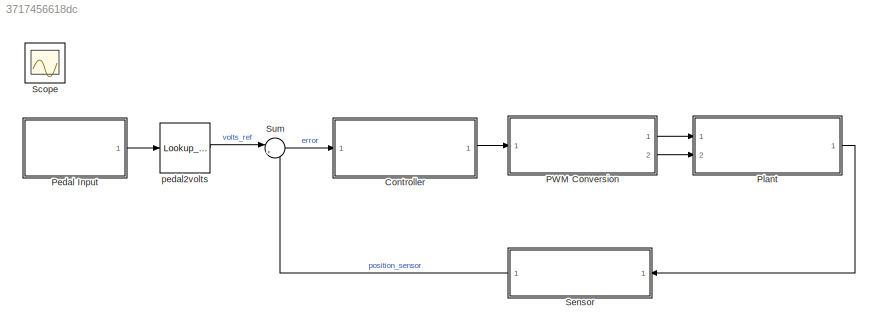
MODEL slx_3717456618dc
KIND model
CONFIG AbsTol = auto
CONFIG EnableMultiTasking = on
CONFIG FixedStep = auto
CONFIG MaxStep = auto
CONFIG MinStep = auto
CONFIG PreLoadFcn = load('allParamValues.mat')
CONFIG RelTol = 1e-3
CONFIG SampleTimeConstraint = Unconstrained
CONFIG Solver = ode15s
CONFIG SolverName = ode15s
CONFIG StartTime = 0.0
CONFIG StopTime = 2
BLOCK [ModelReference] Controller
  ModelNameDialog = controllerRefChapter4
  ModelReferenceVersion = 1.6
  Ports = [1, 1]
BLOCK [ModelReference] PWM Conversion
  ModelNameDialog = logicRefChapter3
  ModelReferenceVersion = 1.40
  Ports = [1, 2]
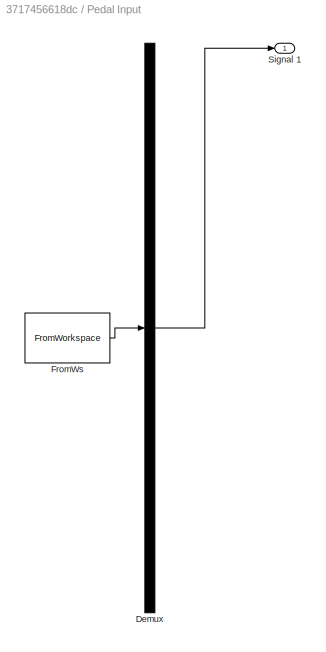
BLOCK [SubSystem] Pedal Input
  AttributesFormatString = 0 - Pedal not pressed\n1 - Pedal fully pressed
  ClipboardFcn = sigbuilder_block('clipboard');
  CloseFcn = sigbuilder_block('close');
  ContinueFcn = sigbuilder_block('continue')
  CopyFcn = sigbuilder_block('copy');
  DeleteFcn = sigbuilder_block('delete');
  LoadFcn = sigbuilder_block('load');
  MaskHideContents = on
  ModelCloseFcn = sigbuilder_block('modelClose');
  NameChangeFcn = sigbuilder_block('namechange');
  OpenFcn = sigbuilder_block('open',[437.25 199.5 550.5 399.75 ]);
  PauseFcn = sigbuilder_block('pause')
  Ports = [0, 1]
  PreSaveFcn = sigbuilder_block('preSave');
  RequestExecContextInheritance = off
  StartFcn = sigbuilder_block('start');
  StopFcn = sigbuilder_block('stop');
  Tag = STV Subsys
BLOCK [Demux] Pedal Input/Demux
  Outputs = 1
  Ports = [1, 1]
  Tag = STV Demux
BLOCK [FromWorkspace] Pedal Input/FromWs
  SampleTime = 0
  Tag = STV FromWs
  VariableName = tuvar
  ZeroCross = on
BLOCK [Outport] Pedal Input/Signal 1
  IconDisplay = Port number
  Tag = STV Outport
BLOCK [ModelReference] Plant
  ModelNameDialog = plantPWM
  ModelReferenceVersion = 1.70
  Ports = [2, 1]
BLOCK [Scope] Scope
  Floating = off
  IOType = viewer
  NumInputPorts = 1
  Ports = []
  ScopeSpecificationString = Simulink.scopes.TimeScopeBlockCfg('CurrentConfiguration', extmgr.ConfigurationSet(extmgr.Configuration('Core','General UI',true),extmgr.Configuration('Core','Source UI',true),extmgr.Configuration('Sources','WiredSimulink',true,'DataLoggingMaxPoints','7500','DataLoggingSaveFormat','Array','DataLoggingDecimation','1','DataLoggingDecimateData',true),extmgr.Configuration('Visuals','Time Domain',true,'...<+2089ch>
BLOCK [ModelReference] Sensor
  ModelNameDialog = sensorRefChapter2
  ModelReferenceVersion = 1.31
  Ports = [1, 1]
BLOCK [Sum] Sum
  IconShape = round
  InputSameDT = off
  Inputs = |+-
  OutDataTypeStr = Inherit: Inherit via internal rule
  Ports = [2, 1]
  SaturateOnIntegerOverflow = off
BLOCK [Lookup_n-D] pedal2volts
  BreakpointsForDimension1 = [0 1]
  NumberOfTableDimensions = 1
  Ports = [1, 1]
  RndMeth = Simplest
  Table = [0.5 4.5]
LINE Controller:1 -> PWM Conversion:1
LINE PWM Conversion:1 -> Plant:1
LINE PWM Conversion:2 -> Plant:2
LINE Pedal Input/Demux:1 -> Pedal Input/Signal 1:1
LINE Pedal Input/FromWs:1 -> Pedal Input/Demux:1
LINE Pedal Input:1 -> pedal2volts:1
LINE Plant:1 -> Sensor:1
LINE Sensor:1 -> Sum:2
LINE Sum:1 -> Controller:1
LINE pedal2volts:1 -> Sum:1
